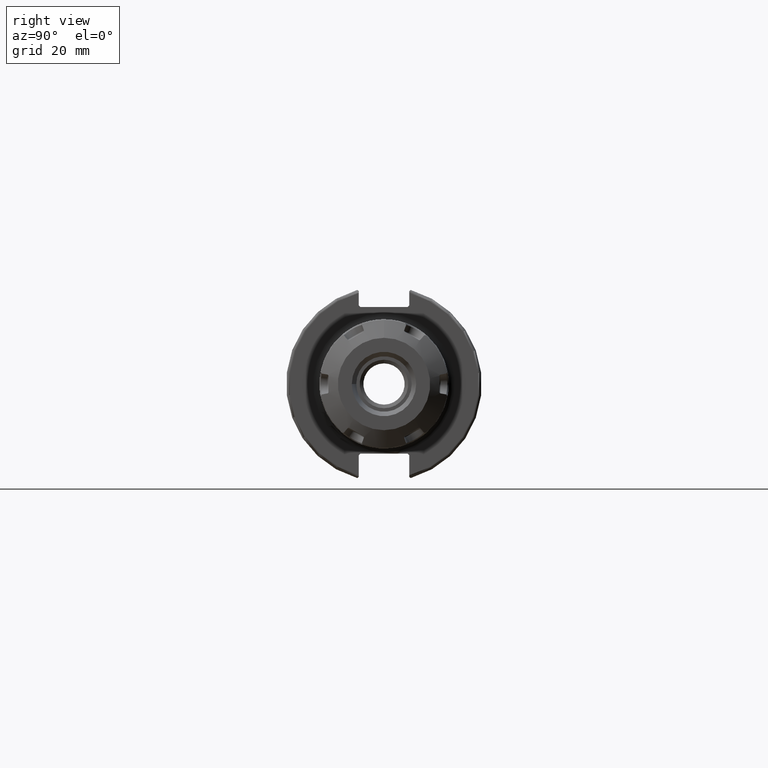
[diagram: clean part render]
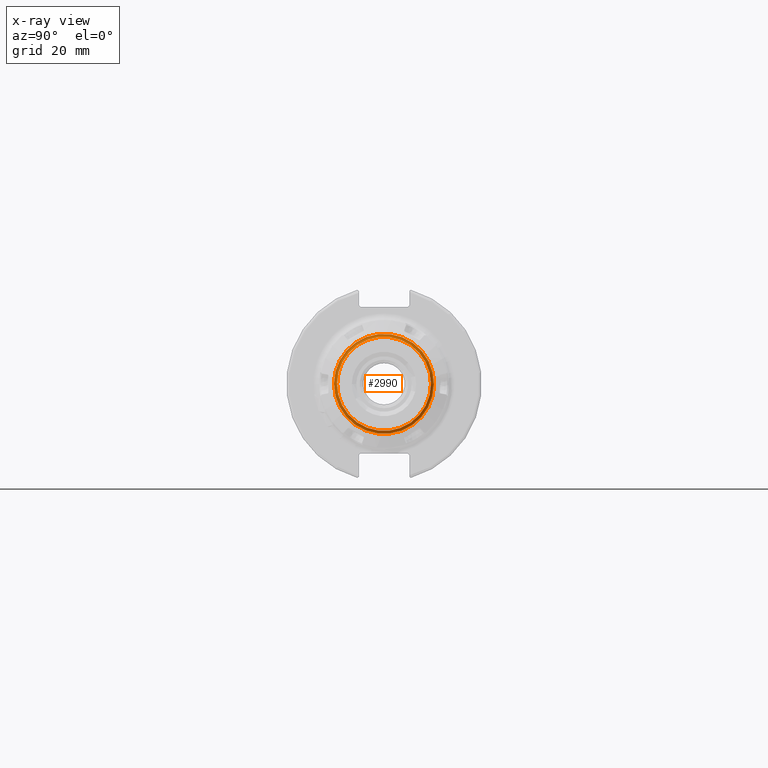
[diagram: x-ray — body ghosted, one internal face saturated and labeled with its STEP entity id]
A machine part, right view, then the same camera in x-ray: the body is ghosted and one INTERNAL B-rep face — a face not visible from any outside direction — is saturated and labeled: STEP entity #2990.
In plain terms, the highlighted toroidal blend (fillet) surface has major radius 16.25 mm and minor (blend) radius 1 mm.
Its self-contained STEP definition (entity closure, byte-faithful):
#159=TOROIDAL_SURFACE('',#3335,16.25,1.);
#487=FACE_OUTER_BOUND('',#673,.T.);
#673=EDGE_LOOP('',(#2475,#2476,#2477,#2478,#2479));
#1213=CIRCLE('',#3334,16.25);
#1214=CIRCLE('',#3336,1.);
#1215=CIRCLE('',#3337,15.25);
#1216=CIRCLE('',#3338,15.25);
#1427=VERTEX_POINT('',#5102);
#1428=VERTEX_POINT('',#5105);
#1429=VERTEX_POINT('',#5107);
#1793=EDGE_CURVE('',#1427,#1427,#1213,.T.);
#1794=EDGE_CURVE('',#1427,#1428,#1214,.T.);
#1795=EDGE_CURVE('',#1428,#1429,#1215,.T.);
#1796=EDGE_CURVE('',#1429,#1428,#1216,.T.);
#2475=ORIENTED_EDGE('',*,*,#1793,.F.);
#2476=ORIENTED_EDGE('',*,*,#1794,.T.);
#2477=ORIENTED_EDGE('',*,*,#1795,.T.);
#2478=ORIENTED_EDGE('',*,*,#1796,.T.);
#2479=ORIENTED_EDGE('',*,*,#1794,.F.);
#2990=ADVANCED_FACE('',(#487),#159,.T.);
#3334=AXIS2_PLACEMENT_3D('',#5103,#3940,#3941);
#3335=AXIS2_PLACEMENT_3D('',#5104,#3942,#3943);
#3336=AXIS2_PLACEMENT_3D('',#5106,#3944,#3945);
#3337=AXIS2_PLACEMENT_3D('',#5108,#3946,#3947);
#3338=AXIS2_PLACEMENT_3D('',#5109,#3948,#3949);
#3940=DIRECTION('center_axis',(1.,0.,0.));
#3941=DIRECTION('ref_axis',(0.,1.,0.));
#3942=DIRECTION('center_axis',(1.,0.,0.));
#3943=DIRECTION('ref_axis',(0.,0.999979980079491,-0.00632767257534494));
#3944=DIRECTION('center_axis',(0.,-0.00632767257534482,-0.999979980079491));
#3945=DIRECTION('ref_axis',(0.,-0.999979980079491,0.00632767257534482));
#3946=DIRECTION('center_axis',(1.,0.,0.));
#3947=DIRECTION('ref_axis',(0.,1.,0.));
#3948=DIRECTION('center_axis',(1.,0.,0.));
#3949=DIRECTION('ref_axis',(0.,1.,0.));
#5102=CARTESIAN_POINT('',(-10.,-16.2496746762917,0.102824679349353));
#5103=CARTESIAN_POINT('Origin',(-10.,0.,0.));
#5104=CARTESIAN_POINT('Origin',(-9.,0.,0.));
#5105=CARTESIAN_POINT('',(-9.,-15.2496946962122,0.0964970067740085));
#5106=CARTESIAN_POINT('Origin',(-9.,-16.2496746762917,0.102824679349353));
#5107=CARTESIAN_POINT('',(-9.,15.25,1.86758636869971E-15));
#5108=CARTESIAN_POINT('Origin',(-9.,0.,0.));
#5109=CARTESIAN_POINT('Origin',(-9.,0.,0.));